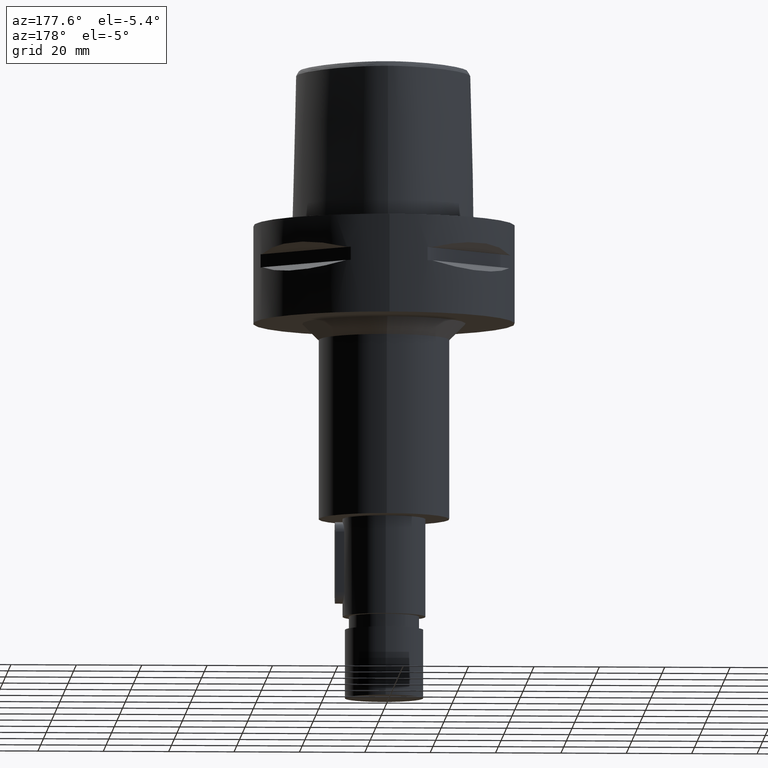
[diagram: clean part render]
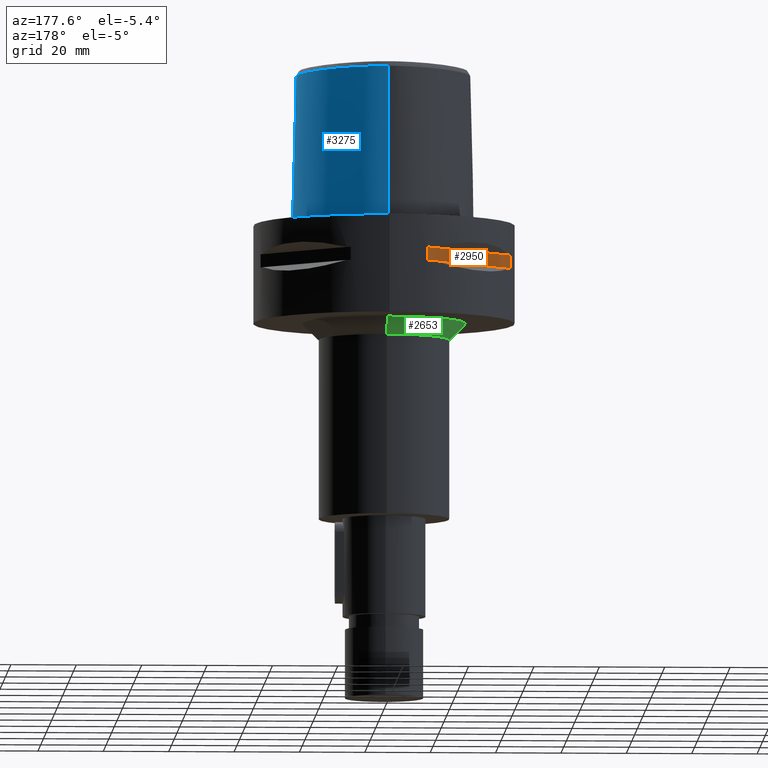
[diagram: same view with three faces highlighted in distinct colors, each labeled with its STEP entity id]
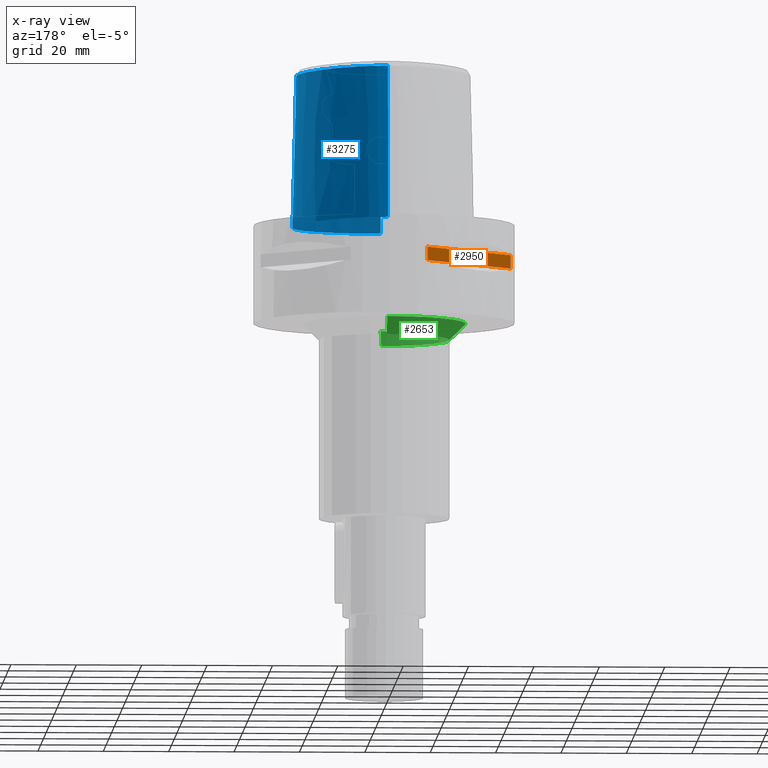
[diagram: x-ray of the same camera — body ghosted, the three highlighted faces saturated]
A machine part, auxiliary view with three faces highlighted in distinct colors.
The next image is the same camera in x-ray (body ghosted, the three faces saturated) — at least one of them is partly hidden behind the body in this view.
Their STEP definitions:

[orange] entity #2950 — the highlighted planar face has unit normal (0.7071, -0.7071, 0).
#480=DIRECTION('',(0.E0,0.E0,-1.E0));
#481=VECTOR('',#480,4.1E0);
#482=CARTESIAN_POINT('',(-1.176033600281E1,3.823211342708E1,-9.95E0));
#483=LINE('',#482,#481);
#498=DIRECTION('',(0.E0,0.E0,1.E0));
#499=VECTOR('',#498,4.1E0);
#500=CARTESIAN_POINT('',(-3.823211342708E1,1.176033600281E1,-1.405E1));
#501=LINE('',#500,#499);
#934=DIRECTION('',(-7.071067811865E-1,-7.071067811865E-1,0.E0));
#935=VECTOR('',#934,3.743674665352E1);
#936=CARTESIAN_POINT('',(-1.176033600281E1,3.823211342708E1,-9.95E0));
#937=LINE('',#936,#935);
#957=DIRECTION('',(-7.071067811865E-1,-7.071067811865E-1,0.E0));
#958=VECTOR('',#957,3.743674665352E1);
#959=CARTESIAN_POINT('',(-1.176033600281E1,3.823211342708E1,-1.405E1));
#960=LINE('',#959,#958);
#1635=CARTESIAN_POINT('',(-1.176033600281E1,3.823211342708E1,-9.95E0));
#1636=VERTEX_POINT('',#1635);
#1637=CARTESIAN_POINT('',(-1.176033600281E1,3.823211342708E1,-1.405E1));
#1638=VERTEX_POINT('',#1637);
#1642=CARTESIAN_POINT('',(-3.823211342708E1,1.176033600281E1,-1.405E1));
#1643=VERTEX_POINT('',#1642);
#1644=CARTESIAN_POINT('',(-3.823211342708E1,1.176033600281E1,-9.95E0));
#1645=VERTEX_POINT('',#1644);
#2938=CARTESIAN_POINT('',(-3.913836033868E1,1.085408909121E1,-9.95E0));
#2939=DIRECTION('',(7.071067811865E-1,-7.071067811865E-1,0.E0));
#2940=DIRECTION('',(0.E0,0.E0,-1.E0));
#2941=AXIS2_PLACEMENT_3D('',#2938,#2939,#2940);
#2942=PLANE('',#2941);
#2943=ORIENTED_EDGE('',*,*,#2585,.F.);
#2945=ORIENTED_EDGE('',*,*,#2944,.F.);
#2946=ORIENTED_EDGE('',*,*,#2577,.F.);
#2947=ORIENTED_EDGE('',*,*,#2931,.T.);
#2948=EDGE_LOOP('',(#2943,#2945,#2946,#2947));
#2949=FACE_OUTER_BOUND('',#2948,.F.);
#2577=EDGE_CURVE('',#1636,#1638,#483,.T.);
#2585=EDGE_CURVE('',#1643,#1645,#501,.T.);
#2931=EDGE_CURVE('',#1636,#1645,#937,.T.);
#2944=EDGE_CURVE('',#1638,#1643,#960,.T.);
#2950=ADVANCED_FACE('',(#2949),#2942,.F.);

[blue] entity #3275 — the highlighted face is a freeform B-spline surface patch.
#128=CARTESIAN_POINT('',(4.472216720977E0,-2.420009030094E1,4.652069014669E1));
#138=CARTESIAN_POINT('',(-1.323777790236E-11,2.841206021535E1,
4.652071719451E1));
#139=CARTESIAN_POINT('',(4.732555820379E-1,2.841206021535E1,4.652071719450E1));
#140=CARTESIAN_POINT('',(1.418896207996E0,2.836151019888E1,4.652069907461E1));
#141=CARTESIAN_POINT('',(2.922988524418E0,2.811987403533E1,4.652071919518E1));
#142=CARTESIAN_POINT('',(4.508664580566E0,2.769211040896E1,4.652071618566E1));
#143=CARTESIAN_POINT('',(6.205982091889E0,2.704453195315E1,4.652072273905E1));
#144=CARTESIAN_POINT('',(7.982456779760E0,2.615688780782E1,4.652072462088E1));
#145=CARTESIAN_POINT('',(9.737750866490E0,2.507269235155E1,4.652071071094E1));
#146=CARTESIAN_POINT('',(1.148745678877E1,2.378691120174E1,4.652072017866E1));
#147=CARTESIAN_POINT('',(1.323125381283E1,2.229535493388E1,4.652071018546E1));
#148=CARTESIAN_POINT('',(1.504057532488E1,2.051591279873E1,4.652072009347E1));
#149=CARTESIAN_POINT('',(1.697112613692E1,1.833105808426E1,4.652072265083E1));
#150=CARTESIAN_POINT('',(1.902050902705E1,1.563057850709E1,4.652067707354E1));
#151=CARTESIAN_POINT('',(2.103249587363E1,1.249334999188E1,4.652072979534E1));
#152=CARTESIAN_POINT('',(2.279940973699E1,9.177985280157E0,4.652068348784E1));
#153=CARTESIAN_POINT('',(2.416960520855E1,6.028719514005E0,4.652073605142E1));
#154=CARTESIAN_POINT('',(2.514574766438E1,3.236252684949E0,4.652071125303E1));
#155=CARTESIAN_POINT('',(2.583181022545E1,7.191795224467E-1,4.652071649749E1));
#156=CARTESIAN_POINT('',(2.628906833636E1,-1.590397866688E0,4.652071949506E1));
#157=CARTESIAN_POINT('',(2.655508423063E1,-3.753874105039E0,4.652071279087E1));
#158=CARTESIAN_POINT('',(2.664613864035E1,-5.832031709293E0,4.652072371557E1));
#159=CARTESIAN_POINT('',(2.655564659348E1,-7.839060720988E0,4.652072379561E1));
#160=CARTESIAN_POINT('',(2.629305491674E1,-9.665411843354E0,4.652071696930E1));
#161=CARTESIAN_POINT('',(2.589006174485E1,-1.128577386316E1,4.652071936724E1));
#162=CARTESIAN_POINT('',(2.536791901432E1,-1.272872909990E1,4.652071432934E1));
#163=CARTESIAN_POINT('',(2.473619237865E1,-1.402817345641E1,4.652071534974E1));
#164=CARTESIAN_POINT('',(2.397588290297E1,-1.523723836773E1,4.652071822725E1));
#165=CARTESIAN_POINT('',(2.304688303024E1,-1.641605406940E1,4.652071812169E1));
#166=CARTESIAN_POINT('',(2.191353973101E1,-1.758049375266E1,4.652071679761E1));
#167=CARTESIAN_POINT('',(2.054789591778E1,-1.872593086335E1,4.652071979074E1));
#168=CARTESIAN_POINT('',(1.890297063129E1,-1.984614064572E1,4.652072037189E1));
#169=CARTESIAN_POINT('',(1.710314977832E1,-2.084169913296E1,4.652071831595E1));
#170=CARTESIAN_POINT('',(1.514673153073E1,-2.172565376548E1,4.652071693372E1));
#171=CARTESIAN_POINT('',(1.299096569634E1,-2.251162311751E1,4.652071683536E1));
#172=CARTESIAN_POINT('',(1.057852503252E1,-2.320209372102E1,4.652070808422E1));
#173=CARTESIAN_POINT('',(7.805472633747E0,-2.379092802576E1,4.652074375039E1));
#174=CARTESIAN_POINT('',(5.628778317791E0,-2.408937769600E1,4.652064750036E1));
#175=CARTESIAN_POINT('',(4.472216720977E0,-2.420009030094E1,4.652069014669E1));
#250=DIRECTION('',(1.388127457203E-9,-2.499239851702E-2,-9.996876412242E-1));
#251=VECTOR('',#250,1.045326522127E1);
#252=CARTESIAN_POINT('',(-1.451045074373E-8,-2.457504746727E1,
4.000000005214E1));
#253=LINE('',#252,#251);
#271=CARTESIAN_POINT('',(-1.566595839318E-12,-2.506378435149E1,2.045E1));
#276=DIRECTION('',(-5.393103586805E-13,-2.499051295404E-2,-9.996876883619E-1));
#277=VECTOR('',#276,2.045638876829E1);
#278=CARTESIAN_POINT('',(-1.566595839318E-12,-2.506378435149E1,2.045E1));
#279=LINE('',#278,#277);
#299=CARTESIAN_POINT('',(-1.259893820325E-11,-2.5575E1,9.037215420449E-14));
#300=CARTESIAN_POINT('',(1.261215395777E0,-2.5575E1,9.037215420449E-14));
#301=CARTESIAN_POINT('',(3.718237019680E0,-2.547857438540E1,
-4.194186272978E-14));
#302=CARTESIAN_POINT('',(7.241002948687E0,-2.507026955350E1,
1.123828824750E-14));
#303=CARTESIAN_POINT('',(1.050074898007E1,-2.442994941533E1,0.E0));
#304=CARTESIAN_POINT('',(1.341884890903E1,-2.360749726351E1,0.E0));
#305=CARTESIAN_POINT('',(1.597088689148E1,-2.265274529555E1,0.E0));
#306=CARTESIAN_POINT('',(1.817245966628E1,-2.160552853007E1,0.E0));
#307=CARTESIAN_POINT('',(2.005956205373E1,-2.049087926059E1,0.E0));
#308=CARTESIAN_POINT('',(2.165609207844E1,-1.933600288891E1,0.E0));
#309=CARTESIAN_POINT('',(2.301069392859E1,-1.814242676938E1,0.E0));
#310=CARTESIAN_POINT('',(2.414425242149E1,-1.692362512577E1,0.E0));
#311=CARTESIAN_POINT('',(2.509847476613E1,-1.566169107639E1,0.E0));
#312=CARTESIAN_POINT('',(2.589370777809E1,-1.433637770379E1,0.E0));
#313=CARTESIAN_POINT('',(2.654425061979E1,-1.292852829120E1,0.E0));
#314=CARTESIAN_POINT('',(2.707211192702E1,-1.139042203119E1,0.E0));
#315=CARTESIAN_POINT('',(2.747125819478E1,-9.694084824252E0,0.E0));
#316=CARTESIAN_POINT('',(2.772782714519E1,-7.792058079486E0,0.E0));
#317=CARTESIAN_POINT('',(2.781205340260E1,-5.676978585653E0,0.E0));
#318=CARTESIAN_POINT('',(2.769235760112E1,-3.320934075916E0,0.E0));
#319=CARTESIAN_POINT('',(2.732924122089E1,-7.100200421974E-1,0.E0));
#320=CARTESIAN_POINT('',(2.668170973645E1,2.152507522032E0,0.E0));
#321=CARTESIAN_POINT('',(2.571370865870E1,5.238897213452E0,0.E0));
#322=CARTESIAN_POINT('',(2.440312344689E1,8.489286731095E0,0.E0));
#323=CARTESIAN_POINT('',(2.276376367651E1,1.178885775819E1,0.E0));
#324=CARTESIAN_POINT('',(2.084958527250E1,1.499728709781E1,0.E0));
#325=CARTESIAN_POINT('',(1.875692274559E1,1.795954916429E1,0.E0));
#326=CARTESIAN_POINT('',(1.657852538559E1,2.058151508151E1,0.E0));
#327=CARTESIAN_POINT('',(1.439619187238E1,2.281719339641E1,0.E0));
#328=CARTESIAN_POINT('',(1.226826922468E1,2.466511000381E1,0.E0));
#329=CARTESIAN_POINT('',(1.022627003095E1,2.615341104875E1,0.E0));
#330=CARTESIAN_POINT('',(8.287647255834E0,2.731899147365E1,0.E0));
#331=CARTESIAN_POINT('',(6.454323511151E0,2.820367733716E1,0.E0));
#332=CARTESIAN_POINT('',(4.717966021540E0,2.884636872174E1,0.E0));
#333=CARTESIAN_POINT('',(3.069353217400E0,2.927786080364E1,1.042832152696E-14));
#334=CARTESIAN_POINT('',(1.501169123804E0,2.952295726477E1,
-3.891902577628E-14));
#335=CARTESIAN_POINT('',(4.932436316848E-1,2.957499999999E1,
8.385884579335E-14));
#336=CARTESIAN_POINT('',(3.246797321476E-11,2.957499999999E1,
8.385884579335E-14));
#341=CARTESIAN_POINT('',(3.246797321476E-11,2.957499999999E1,
8.385884579335E-14));
#378=CARTESIAN_POINT('',(-1.259893820325E-11,-2.5575E1,9.037215420449E-14));
#1151=CARTESIAN_POINT('',(-1.566595839318E-12,-2.506378435149E1,2.045E1));
#1152=CARTESIAN_POINT('',(3.954072385970E-1,-2.506378435149E1,2.045E1));
#1153=CARTESIAN_POINT('',(1.186753459267E0,-2.505127021271E1,2.055377441387E1));
#1154=CARTESIAN_POINT('',(2.293901026105E0,-2.499899038356E1,2.101029884895E1));
#1155=CARTESIAN_POINT('',(3.249199742156E0,-2.492423366302E1,2.174038340004E1));
#1156=CARTESIAN_POINT('',(3.983109891138E0,-2.484333493048E1,2.269399437273E1));
#1157=CARTESIAN_POINT('',(4.444902099457E0,-2.477340454867E1,2.380604644136E1));
#1158=CARTESIAN_POINT('',(4.602189725522E0,-2.472804812745E1,2.499792083744E1));
#1159=CARTESIAN_POINT('',(4.446334752733E0,-2.471346400510E1,2.618704469361E1));
#1160=CARTESIAN_POINT('',(3.988616765539E0,-2.472738510881E1,2.729584248229E1));
#1161=CARTESIAN_POINT('',(3.258671858174E0,-2.476043868878E1,2.825013255837E1));
#1162=CARTESIAN_POINT('',(2.303887962671E0,-2.479896037678E1,2.898443751551E1));
#1163=CARTESIAN_POINT('',(1.191549157684E0,-2.482886762172E1,2.944549741629E1));
#1164=CARTESIAN_POINT('',(3.970274391533E-1,-2.483629963748E1,2.955E1));
#1165=CARTESIAN_POINT('',(1.372734075393E-14,-2.483629963748E1,2.955E1));
#1170=CARTESIAN_POINT('',(4.602926386879E0,-2.435121850030E1,4.000000005215E1));
#1171=CARTESIAN_POINT('',(4.588866899356E0,-2.433440433283E1,4.072434907413E1));
#1172=CARTESIAN_POINT('',(4.559961035626E0,-2.430022594202E1,4.217314077646E1));
#1173=CARTESIAN_POINT('',(4.516394065040E0,-2.424985529238E1,4.434670381198E1));
#1174=CARTESIAN_POINT('',(4.487210999458E0,-2.421685509515E1,4.579599754735E1));
#1175=CARTESIAN_POINT('',(4.472216720977E0,-2.420009030094E1,4.652069014669E1));
#1180=DIRECTION('',(9.821748123119E-13,2.499051293976E-2,-9.996876883622E-1));
#1181=VECTOR('',#1180,4.653525069487E1);
#1182=CARTESIAN_POINT('',(-1.323777790236E-11,2.841206021535E1,
4.652071719451E1));
#1183=LINE('',#1182,#1181);
#1549=CARTESIAN_POINT('',(4.602926386879E0,-2.435121850030E1,4.000000005215E1));
#1550=CARTESIAN_POINT('',(4.092927945188E0,-2.440134254990E1,4.000000005215E1));
#1551=CARTESIAN_POINT('',(3.071957838276E0,-2.448406989328E1,3.999999998262E1));
#1552=CARTESIAN_POINT('',(1.536621703767E0,-2.455890147704E1,3.999999998262E1));
#1553=CARTESIAN_POINT('',(5.124223333400E-1,-2.457504746727E1,
4.000000005214E1));
#1554=CARTESIAN_POINT('',(-1.451045074373E-8,-2.457504746727E1,
4.000000005214E1));
#1559=CARTESIAN_POINT('',(-1.451045074373E-8,-2.457504746727E1,
4.000000005214E1));
#1586=VERTEX_POINT('',#128);
#1587=VERTEX_POINT('',#1170);
#1591=CARTESIAN_POINT('',(-1.323777790236E-11,2.841206021535E1,
4.652071719451E1));
#1592=VERTEX_POINT('',#1591);
#1593=VERTEX_POINT('',#341);
#1594=VERTEX_POINT('',#378);
#1595=VERTEX_POINT('',#1559);
#1596=CARTESIAN_POINT('',(1.372734075387E-14,-2.483629963748E1,2.955E1));
#1597=VERTEX_POINT('',#1596);
#1598=VERTEX_POINT('',#271);
#3154=CARTESIAN_POINT('',(-8.532294277573E-1,-2.559082453093E1,
-9.304144770735E-1));
#3155=CARTESIAN_POINT('',(-8.462047059486E-1,-2.518772801053E1,
1.519676979220E1));
#3156=CARTESIAN_POINT('',(-8.391799841399E-1,-2.478463149013E1,
3.132395406148E1));
#3157=CARTESIAN_POINT('',(-8.321552623312E-1,-2.438153496973E1,
4.745113833075E1));
#3158=CARTESIAN_POINT('',(-5.689009026168E-1,-2.559577917785E1,
-9.304144770735E-1));
#3159=CARTESIAN_POINT('',(-5.642169923968E-1,-2.519264564353E1,
1.519676979220E1));
#3160=CARTESIAN_POINT('',(-5.595330821767E-1,-2.478951210921E1,
3.132395406148E1));
#3161=CARTESIAN_POINT('',(-5.548491719566E-1,-2.438637857488E1,
4.745113833075E1));
#3162=CARTESIAN_POINT('',(2.393561154357E0,-2.562160365871E1,
-9.304144770735E-1));
#3163=CARTESIAN_POINT('',(2.373865160457E0,-2.521827242969E1,1.519676979220E1));
#3164=CARTESIAN_POINT('',(2.354169166556E0,-2.481494120067E1,3.132395406148E1));
#3165=CARTESIAN_POINT('',(2.334473172656E0,-2.441160997165E1,4.745113833075E1));
#3166=CARTESIAN_POINT('',(6.695047936505E0,-2.526858194622E1,
-9.304144770735E-1));
#3167=CARTESIAN_POINT('',(6.639625076732E0,-2.486795321180E1,1.519676979220E1));
#3168=CARTESIAN_POINT('',(6.584202216960E0,-2.446732447738E1,3.132395406148E1));
#3169=CARTESIAN_POINT('',(6.528779357188E0,-2.406669574296E1,4.745113833075E1));
#3170=CARTESIAN_POINT('',(1.174634101484E1,-2.415815461095E1,
-9.304144770735E-1));
#3171=CARTESIAN_POINT('',(1.164093424003E1,-2.376831843790E1,1.519676979220E1));
#3172=CARTESIAN_POINT('',(1.153552746521E1,-2.337848226485E1,3.132395406148E1));
#3173=CARTESIAN_POINT('',(1.143012069039E1,-2.298864609181E1,4.745113833075E1));
#3174=CARTESIAN_POINT('',(1.530623779600E1,-2.298697010188E1,
-9.304144770735E-1));
#3175=CARTESIAN_POINT('',(1.515935282157E1,-2.261055604430E1,1.519676979220E1));
#3176=CARTESIAN_POINT('',(1.501246784715E1,-2.223414198673E1,3.132395406148E1));
#3177=CARTESIAN_POINT('',(1.486558287272E1,-2.185772792915E1,4.745113833075E1));
#3178=CARTESIAN_POINT('',(1.856135208396E1,-2.147443746691E1,
-9.304144770735E-1));
#3179=CARTESIAN_POINT('',(1.836798846960E1,-2.111924012377E1,1.519676979220E1));
#3180=CARTESIAN_POINT('',(1.817462485523E1,-2.076404278064E1,3.132395406148E1));
#3181=CARTESIAN_POINT('',(1.798126124086E1,-2.040884543750E1,4.745113833075E1));
#3182=CARTESIAN_POINT('',(2.143542293249E1,-1.961750339132E1,
-9.304144770735E-1));
#3183=CARTESIAN_POINT('',(2.119046239249E1,-1.929498367086E1,1.519676979220E1));
#3184=CARTESIAN_POINT('',(2.094550185250E1,-1.897246395040E1,3.132395406148E1));
#3185=CARTESIAN_POINT('',(2.070054131250E1,-1.864994422994E1,4.745113833075E1));
#3186=CARTESIAN_POINT('',(2.344929528155E1,-1.778045351949E1,
-9.304144770735E-1));
#3187=CARTESIAN_POINT('',(2.315870205101E1,-1.749879694210E1,1.519676979220E1));
#3188=CARTESIAN_POINT('',(2.286810882047E1,-1.721714036470E1,3.132395406148E1));
#3189=CARTESIAN_POINT('',(2.257751558993E1,-1.693548378731E1,4.745113833075E1));
#3190=CARTESIAN_POINT('',(2.479336081450E1,-1.613554022452E1,
-9.304144770735E-1));
#3191=CARTESIAN_POINT('',(2.446791223549E1,-1.589630654116E1,1.519676979220E1));
#3192=CARTESIAN_POINT('',(2.414246365648E1,-1.565707285781E1,3.132395406148E1));
#3193=CARTESIAN_POINT('',(2.381701507748E1,-1.541783917445E1,4.745113833075E1));
#3194=CARTESIAN_POINT('',(2.565830880164E1,-1.481383149360E1,
-9.304144770735E-1));
#3195=CARTESIAN_POINT('',(2.530843714883E1,-1.461183300042E1,1.519676979220E1));
#3196=CARTESIAN_POINT('',(2.495856549602E1,-1.440983450725E1,3.132395406148E1));
#3197=CARTESIAN_POINT('',(2.460869384321E1,-1.420783601407E1,4.745113833075E1));
#3198=CARTESIAN_POINT('',(2.637046814541E1,-1.340391019820E1,
-9.304144770735E-1));
#3199=CARTESIAN_POINT('',(2.600056140973E1,-1.324168030439E1,1.519676979220E1));
#3200=CARTESIAN_POINT('',(2.563065467404E1,-1.307945041058E1,3.132395406148E1));
#3201=CARTESIAN_POINT('',(2.526074793836E1,-1.291722051677E1,4.745113833075E1));
#3202=CARTESIAN_POINT('',(2.712297207982E1,-1.141745865541E1,
-9.304144770735E-1));
#3203=CARTESIAN_POINT('',(2.673375370716E1,-1.130662581592E1,1.519676979220E1));
#3204=CARTESIAN_POINT('',(2.634453533451E1,-1.119579297643E1,3.132395406148E1));
#3205=CARTESIAN_POINT('',(2.595531696185E1,-1.108496013693E1,4.745113833075E1));
#3206=CARTESIAN_POINT('',(2.770696775903E1,-8.754869100835E0,
-9.304144770735E-1));
#3207=CARTESIAN_POINT('',(2.730517726863E1,-8.703986978030E0,1.519676979220E1));
#3208=CARTESIAN_POINT('',(2.690338677824E1,-8.653104855225E0,3.132395406148E1));
#3209=CARTESIAN_POINT('',(2.650159628784E1,-8.602222732421E0,4.745113833075E1));
#3210=CARTESIAN_POINT('',(2.787808443100E1,-5.337383714068E0,
-9.304144770735E-1));
#3211=CARTESIAN_POINT('',(2.747379251595E1,-5.347524336887E0,1.519676979220E1));
#3212=CARTESIAN_POINT('',(2.706950060090E1,-5.357664959706E0,3.132395406148E1));
#3213=CARTESIAN_POINT('',(2.666520868585E1,-5.367805582525E0,4.745113833075E1));
#3214=CARTESIAN_POINT('',(2.756041892241E1,-1.762105663762E0,
-9.304144770735E-1));
#3215=CARTESIAN_POINT('',(2.716099298967E1,-1.823107491899E0,1.519676979220E1));
#3216=CARTESIAN_POINT('',(2.676156705692E1,-1.884109320037E0,3.132395406148E1));
#3217=CARTESIAN_POINT('',(2.636214112418E1,-1.945111148175E0,4.745113833075E1));
#3218=CARTESIAN_POINT('',(2.679474625774E1,1.906447387334E0,
-9.304144770735E-1));
#3219=CARTESIAN_POINT('',(2.640443226383E1,1.802817673539E0,1.519676979220E1));
#3220=CARTESIAN_POINT('',(2.601411826993E1,1.699187959743E0,3.132395406148E1));
#3221=CARTESIAN_POINT('',(2.562380427602E1,1.595558245947E0,4.745113833075E1));
#3222=CARTESIAN_POINT('',(2.523075706183E1,6.836210430570E0,
-9.304144770735E-1));
#3223=CARTESIAN_POINT('',(2.485610465441E1,6.683875467354E0,1.519676979220E1));
#3224=CARTESIAN_POINT('',(2.448145224700E1,6.531540504137E0,3.132395406148E1));
#3225=CARTESIAN_POINT('',(2.410679983959E1,6.379205540921E0,4.745113833075E1));
#3226=CARTESIAN_POINT('',(2.235908247768E1,1.290902243051E1,
-9.304144770735E-1));
#3227=CARTESIAN_POINT('',(2.200846693094E1,1.270659196830E1,1.519676979220E1));
#3228=CARTESIAN_POINT('',(2.165785138420E1,1.250416150609E1,3.132395406148E1));
#3229=CARTESIAN_POINT('',(2.130723583746E1,1.230173104388E1,4.745113833075E1));
#3230=CARTESIAN_POINT('',(1.777103258628E1,1.953703864447E1,
-9.304144770735E-1));
#3231=CARTESIAN_POINT('',(1.745811262685E1,1.927961880688E1,1.519676979220E1));
#3232=CARTESIAN_POINT('',(1.714519266742E1,1.902219896929E1,3.132395406148E1));
#3233=CARTESIAN_POINT('',(1.683227270799E1,1.876477913170E1,4.745113833075E1));
#3234=CARTESIAN_POINT('',(1.323332856293E1,2.406149249904E1,
-9.304144770735E-1));
#3235=CARTESIAN_POINT('',(1.296695410001E1,2.375598709895E1,1.519676979220E1));
#3236=CARTESIAN_POINT('',(1.270057963709E1,2.345048169886E1,3.132395406148E1));
#3237=CARTESIAN_POINT('',(1.243420517417E1,2.314497629877E1,4.745113833075E1));
#3238=CARTESIAN_POINT('',(9.316733117270E0,2.681182150640E1,
-9.304144770735E-1));
#3239=CARTESIAN_POINT('',(9.105791465881E0,2.646675914542E1,1.519676979220E1));
#3240=CARTESIAN_POINT('',(8.894849814493E0,2.612169678443E1,3.132395406148E1));
#3241=CARTESIAN_POINT('',(8.683908163104E0,2.577663442345E1,4.745113833075E1));
#3242=CARTESIAN_POINT('',(6.271543170515E0,2.837237220523E1,
-9.304144770735E-1));
#3243=CARTESIAN_POINT('',(6.114741924653E0,2.799897533549E1,1.519676979220E1));
#3244=CARTESIAN_POINT('',(5.957940678790E0,2.762557846576E1,3.132395406148E1));
#3245=CARTESIAN_POINT('',(5.801139432928E0,2.725218159603E1,4.745113833075E1));
#3246=CARTESIAN_POINT('',(3.154109046506E0,2.936302093376E1,
-9.304144770735E-1));
#3247=CARTESIAN_POINT('',(3.067023398586E0,2.896669974869E1,1.519676979220E1));
#3248=CARTESIAN_POINT('',(2.979937750666E0,2.857037856361E1,3.132395406148E1));
#3249=CARTESIAN_POINT('',(2.892852102746E0,2.817405737854E1,4.745113833075E1));
#3250=CARTESIAN_POINT('',(7.484115207735E-1,2.963215901917E1,
-9.304144770735E-1));
#3251=CARTESIAN_POINT('',(7.265635661188E-1,2.922802203671E1,1.519676979220E1));
#3252=CARTESIAN_POINT('',(7.047156114641E-1,2.882388505425E1,3.132395406148E1));
#3253=CARTESIAN_POINT('',(6.828676568094E-1,2.841974807180E1,4.745113833075E1));
#3254=CARTESIAN_POINT('',(-6.060951003541E-1,2.958848805125E1,
-9.304144770735E-1));
#3255=CARTESIAN_POINT('',(-5.886350999521E-1,2.918561927814E1,
1.519676979220E1));
#3256=CARTESIAN_POINT('',(-5.711750995502E-1,2.878275050504E1,
3.132395406148E1));
#3257=CARTESIAN_POINT('',(-5.537150991482E-1,2.837988173193E1,
4.745113833075E1));
#3258=CARTESIAN_POINT('',(-9.090099844884E-1,2.956867551597E1,
-9.304144770735E-1));
#3259=CARTESIAN_POINT('',(-8.826521036482E-1,2.916640542214E1,
1.519676979220E1));
#3260=CARTESIAN_POINT('',(-8.562942228080E-1,2.876413532830E1,
3.132395406148E1));
#3261=CARTESIAN_POINT('',(-8.299363419678E-1,2.836186523446E1,
4.745113833075E1));
#3262=B_SPLINE_SURFACE_WITH_KNOTS('',3,3,((#3154,#3155,#3156,#3157),(#3158,
#3159,#3160,#3161),(#3162,#3163,#3164,#3165),(#3166,#3167,#3168,#3169),(#3170,
#3171,#3172,#3173),(#3174,#3175,#3176,#3177),(#3178,#3179,#3180,#3181),(#3182,
#3183,#3184,#3185),(#3186,#3187,#3188,#3189),(#3190,#3191,#3192,#3193),(#3194,
#3195,#3196,#3197),(#3198,#3199,#3200,#3201),(#3202,#3203,#3204,#3205),(#3206,
#3207,#3208,#3209),(#3210,#3211,#3212,#3213),(#3214,#3215,#3216,#3217),(#3218,
#3219,#3220,#3221),(#3222,#3223,#3224,#3225),(#3226,#3227,#3228,#3229),(#3230,
#3231,#3232,#3233),(#3234,#3235,#3236,#3237),(#3238,#3239,#3240,#3241),(#3242,
#3243,#3244,#3245),(#3246,#3247,#3248,#3249),(#3250,#3251,#3252,#3253),(#3254,
#3255,#3256,#3257),(#3258,#3259,#3260,#3261)),.UNSPECIFIED.,.F.,.F.,.F.,(4,1,1,
1,1,1,1,1,1,1,1,1,1,1,1,1,1,1,1,1,1,1,1,1,4),(4,4),(-8.851417483044E-3,0.E0,
8.333333333341E-2,1.250000000001E-1,1.666666666667E-1,2.083333333333E-1,2.5E-1,
2.916666666667E-1,3.125E-1,3.333333333332E-1,3.541666666666E-1,
3.749999999999E-1,4.166666666666E-1,4.583333333332E-1,4.999999999998E-1,
5.416666666665E-1,5.833333333331E-1,6.666666666665E-1,7.499999999997E-1,
8.333333333330E-1,8.749999999996E-1,9.166666666663E-1,9.583333333329E-1,1.E0,
1.012009199036E0),(5.216298362004E-9,9.999997339689E-1),.UNSPECIFIED.);
#3263=ORIENTED_EDGE('',*,*,#2504,.F.);
#3264=ORIENTED_EDGE('',*,*,#2488,.F.);
#3266=ORIENTED_EDGE('',*,*,#3265,.T.);
#3267=ORIENTED_EDGE('',*,*,#2484,.F.);
#3269=ORIENTED_EDGE('',*,*,#3268,.F.);
#3270=ORIENTED_EDGE('',*,*,#1785,.T.);
#3271=ORIENTED_EDGE('',*,*,#2077,.F.);
#3272=ORIENTED_EDGE('',*,*,#2478,.T.);
#3273=EDGE_LOOP('',(#3263,#3264,#3266,#3267,#3269,#3270,#3271,#3272));
#3274=FACE_OUTER_BOUND('',#3273,.F.);
#176=B_SPLINE_CURVE_WITH_KNOTS('',3,(#138,#139,#140,#141,#142,#143,#144,#145,
#146,#147,#148,#149,#150,#151,#152,#153,#154,#155,#156,#157,#158,#159,#160,#161,
#162,#163,#164,#165,#166,#167,#168,#169,#170,#171,#172,#173,#174,#175),
.UNSPECIFIED.,.F.,.F.,(4,1,1,1,1,1,1,1,1,1,1,1,1,1,1,1,1,1,1,1,1,1,1,1,1,1,1,1,
1,1,1,1,1,1,1,4),(0.E0,2.857142857143E-2,5.714285714286E-2,8.571428571429E-2,
1.142857142857E-1,1.428571428571E-1,1.714285714286E-1,2.E-1,2.285714285714E-1,
2.571428571429E-1,2.857142857143E-1,3.142857142857E-1,3.428571428571E-1,
3.714285714286E-1,4.E-1,4.285714285714E-1,4.571428571429E-1,4.857142857143E-1,
5.142857142857E-1,5.428571428571E-1,5.714285714286E-1,6.E-1,6.285714285714E-1,
6.571428571429E-1,6.857142857143E-1,7.142857142857E-1,7.428571428571E-1,
7.714285714286E-1,8.E-1,8.285714285714E-1,8.571428571429E-1,8.857142857143E-1,
9.142857142857E-1,9.428571428571E-1,9.714285714286E-1,1.E0),.UNSPECIFIED.);
#337=B_SPLINE_CURVE_WITH_KNOTS('',3,(#299,#300,#301,#302,#303,#304,#305,#306,
#307,#308,#309,#310,#311,#312,#313,#314,#315,#316,#317,#318,#319,#320,#321,#322,
#323,#324,#325,#326,#327,#328,#329,#330,#331,#332,#333,#334,#335,#336),
.UNSPECIFIED.,.F.,.F.,(4,1,1,1,1,1,1,1,1,1,1,1,1,1,1,1,1,1,1,1,1,1,1,1,1,1,1,1,
1,1,1,1,1,1,1,4),(0.E0,2.857142857143E-2,5.714285714286E-2,8.571428571429E-2,
1.142857142857E-1,1.428571428571E-1,1.714285714286E-1,2.E-1,2.285714285714E-1,
2.571428571429E-1,2.857142857143E-1,3.142857142857E-1,3.428571428571E-1,
3.714285714286E-1,4.E-1,4.285714285714E-1,4.571428571429E-1,4.857142857143E-1,
5.142857142857E-1,5.428571428571E-1,5.714285714286E-1,6.E-1,6.285714285714E-1,
6.571428571429E-1,6.857142857143E-1,7.142857142857E-1,7.428571428571E-1,
7.714285714286E-1,8.E-1,8.285714285714E-1,8.571428571429E-1,8.857142857143E-1,
9.142857142857E-1,9.428571428571E-1,9.714285714286E-1,1.E0),.UNSPECIFIED.);
#1166=B_SPLINE_CURVE_WITH_KNOTS('',3,(#1151,#1152,#1153,#1154,#1155,#1156,#1157,
#1158,#1159,#1160,#1161,#1162,#1163,#1164,#1165),.UNSPECIFIED.,.F.,.F.,(4,1,1,1,
1,1,1,1,1,1,1,1,4),(0.E0,8.333333333333E-2,1.666666666667E-1,2.5E-1,
3.333333333333E-1,4.166666666667E-1,5.E-1,5.833333333333E-1,6.666666666667E-1,
7.5E-1,8.333333333333E-1,9.166666666667E-1,1.E0),.UNSPECIFIED.);
#1176=B_SPLINE_CURVE_WITH_KNOTS('',3,(#1170,#1171,#1172,#1173,#1174,#1175),
.UNSPECIFIED.,.F.,.F.,(4,1,1,4),(0.E0,3.333333333333E-1,6.666666666667E-1,1.E0),
.UNSPECIFIED.);
#1555=B_SPLINE_CURVE_WITH_KNOTS('',3,(#1549,#1550,#1551,#1552,#1553,#1554),
.UNSPECIFIED.,.F.,.F.,(4,1,1,4),(0.E0,3.333333333333E-1,6.666666666667E-1,1.E0),
.UNSPECIFIED.);
#1785=EDGE_CURVE('',#1587,#1586,#1176,.T.);
#2077=EDGE_CURVE('',#1592,#1586,#176,.T.);
#2478=EDGE_CURVE('',#1592,#1593,#1183,.T.);
#2484=EDGE_CURVE('',#1595,#1597,#253,.T.);
#2488=EDGE_CURVE('',#1598,#1594,#279,.T.);
#2504=EDGE_CURVE('',#1594,#1593,#337,.T.);
#3265=EDGE_CURVE('',#1598,#1597,#1166,.T.);
#3268=EDGE_CURVE('',#1587,#1595,#1555,.T.);
#3275=ADVANCED_FACE('',(#3274),#3262,.T.);

[green] entity #2653 — the highlighted conical surface has half-angle 45 deg.
#565=CARTESIAN_POINT('',(0.E0,0.E0,-3.E1));
#566=DIRECTION('',(0.E0,0.E0,-1.E0));
#567=DIRECTION('',(0.E0,-1.E0,0.E0));
#568=AXIS2_PLACEMENT_3D('',#565,#566,#567);
#573=DIRECTION('',(0.E0,-7.071067811865E-1,-7.071067811865E-1));
#574=VECTOR('',#573,7.071067811865E0);
#575=CARTESIAN_POINT('',(0.E0,2.5E1,-3.E1));
#576=LINE('',#575,#574);
#588=DIRECTION('',(0.E0,7.071067811865E-1,-7.071067811865E-1));
#589=VECTOR('',#588,7.071067811865E0);
#590=CARTESIAN_POINT('',(0.E0,-2.5E1,-3.E1));
#591=LINE('',#590,#589);
#595=CARTESIAN_POINT('',(0.E0,0.E0,-3.5E1));
#596=DIRECTION('',(0.E0,0.E0,-1.E0));
#597=DIRECTION('',(0.E0,-1.E0,0.E0));
#598=AXIS2_PLACEMENT_3D('',#595,#596,#597);
#1659=CARTESIAN_POINT('',(0.E0,2.5E1,-3.E1));
#1660=CARTESIAN_POINT('',(0.E0,-2.5E1,-3.E1));
#1661=VERTEX_POINT('',#1659);
#1662=VERTEX_POINT('',#1660);
#1663=CARTESIAN_POINT('',(0.E0,2.E1,-3.5E1));
#1664=VERTEX_POINT('',#1663);
#1665=CARTESIAN_POINT('',(0.E0,-2.E1,-3.5E1));
#1666=VERTEX_POINT('',#1665);
#2641=CARTESIAN_POINT('',(0.E0,0.E0,-3.25E1));
#2642=DIRECTION('',(0.E0,0.E0,1.E0));
#2643=DIRECTION('',(0.E0,1.E0,0.E0));
#2644=AXIS2_PLACEMENT_3D('',#2641,#2642,#2643);
#2645=CONICAL_SURFACE('',#2644,2.25E1,4.5E1);
#2646=ORIENTED_EDGE('',*,*,#2631,.F.);
#2647=ORIENTED_EDGE('',*,*,#2621,.F.);
#2648=ORIENTED_EDGE('',*,*,#2635,.T.);
#2650=ORIENTED_EDGE('',*,*,#2649,.T.);
#2651=EDGE_LOOP('',(#2646,#2647,#2648,#2650));
#2652=FACE_OUTER_BOUND('',#2651,.F.);
#569=CIRCLE('',#568,2.5E1);
#599=CIRCLE('',#598,2.E1);
#2621=EDGE_CURVE('',#1662,#1661,#569,.T.);
#2631=EDGE_CURVE('',#1661,#1664,#576,.T.);
#2635=EDGE_CURVE('',#1662,#1666,#591,.T.);
#2649=EDGE_CURVE('',#1666,#1664,#599,.T.);
#2653=ADVANCED_FACE('',(#2652),#2645,.T.);